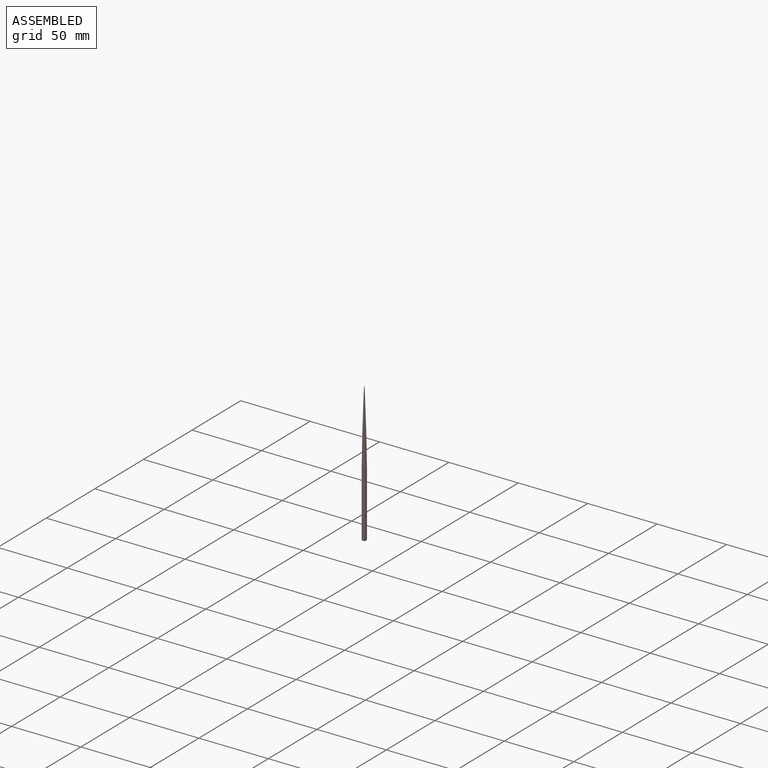
[diagram: assembled view]
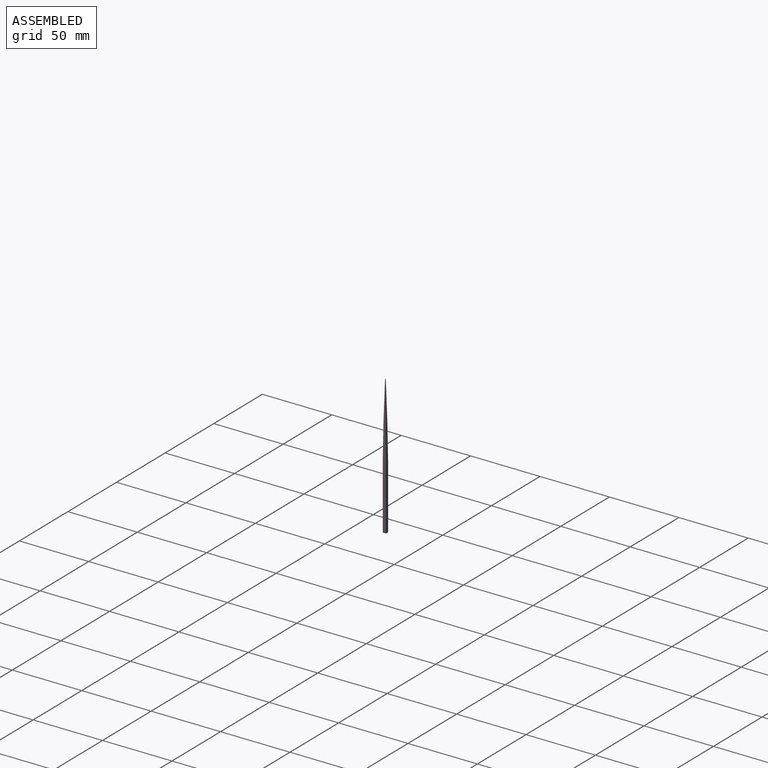
[diagram: assembled view, second angle]
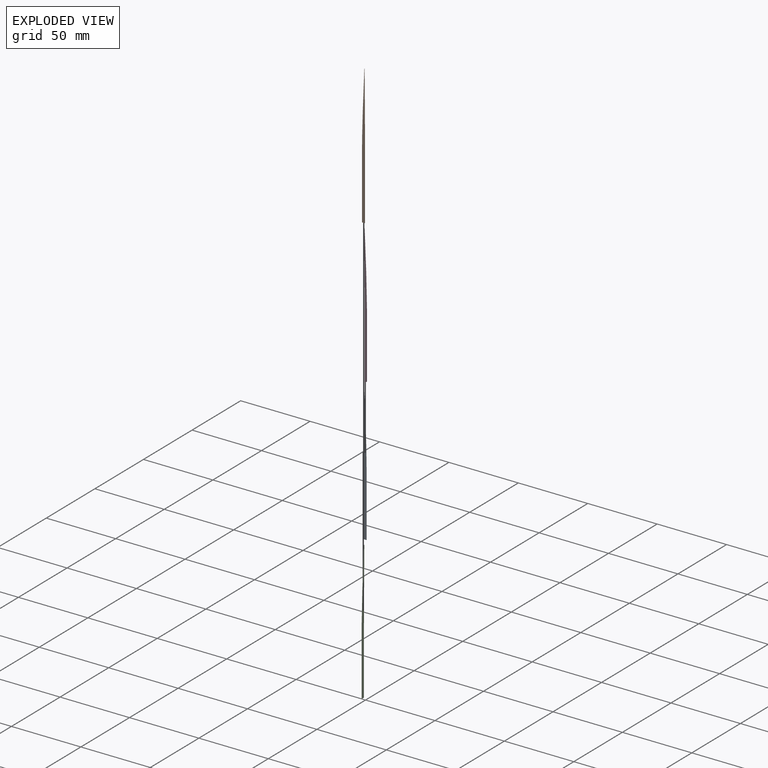
[diagram: exploded view]
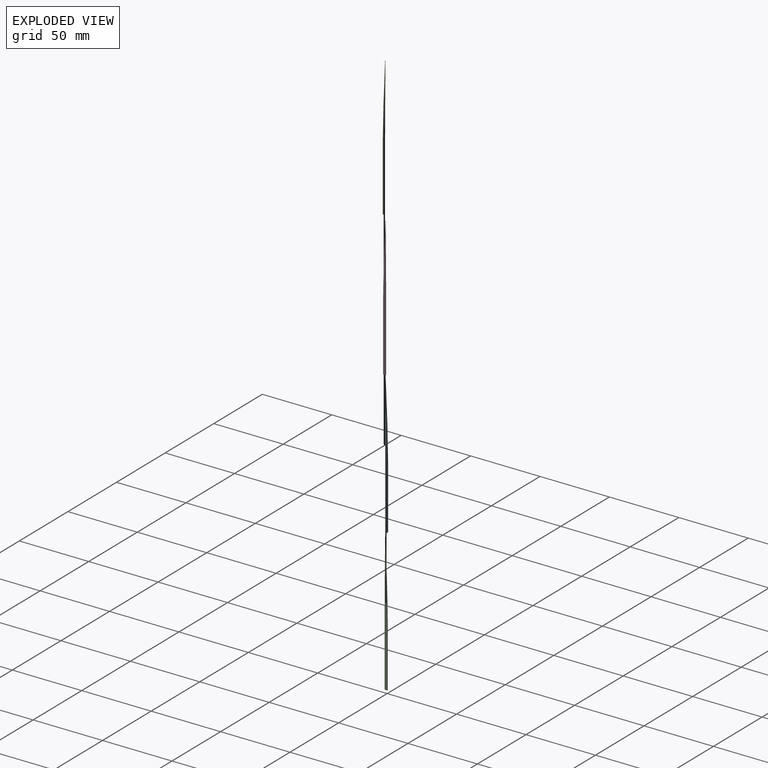
[diagram: exploded view, second angle]
ASSEMBLY  parts=4 mates=3
PART A: 11 faces, bbox 2x1.3x100 mm
  f0: plane 2x0.28mm, normal (0,0,-1), area 0.6mm2, adj f1,f5,f7,f10
  f1: plane 46.33x0.28mm, normal (1,0,0), area 13mm2, adj f0,f2,f7,f10
  f2: extruded ~48.56x1.14mm, area 13.6mm2, adj f1,f3,f7,f8,f9,f10
  f3: extruded ~5.11x0.42mm, area 1.4mm2, adj f2,f4,f6,f8,f9
  f4: extruded ~53.67x1.28mm, area 15mm2, adj f3,f5,f6,f7,f8,f9,f10
  f5: plane 46.33x0.28mm, normal (-1,0,0), area 13mm2, adj f0,f4,f7,f10
  f6: extruded ~5.1x0.28mm, area 0.7mm2, adj f3,f4,f8
  f7: plane 46.33x2mm, normal (0,1,0), area 92.7mm2, adj f0,f1,f2,f4,f5,f8
  f8: extruded ~48.56x2mm, area 64mm2, adj f2,f3,f4,f6,f7
  f9: extruded ~53.67x2mm, area 64.7mm2, adj f2,f3,f4,f10
  f10: plane 46.33x2mm, normal (0,-1,0), area 92.7mm2, adj f0,f1,f2,f4,f5,f9
PART B: same geometry as A
PART C: same geometry as A
PART D: same geometry as A
PLACE A rot(axis=(0,0,-1),180deg) t=(-0.13,-1.4,26.58)mm
PLACE B rot(axis=(0,0,1),0deg) t=(0.15,-1.12,26.58)mm
PLACE C rot(axis=(0,0,-1),90deg) t=(0.15,-1.4,26.58)mm
PLACE D rot(axis=(0,0,1),90deg) t=(-0.13,-1.12,26.58)mm
MATE fastened C.f0 <-> A.f0  axis (0,0,-1) through (-1.13,-0.4,-73.42)mm
MATE fastened B.f0 <-> D.f0  axis (0,0,-1) through (1.15,-2.12,-73.42)mm
MATE fastened A.f0 <-> D.f0  axis (0,0,-1) through (0.87,-0.12,-73.42)mm
